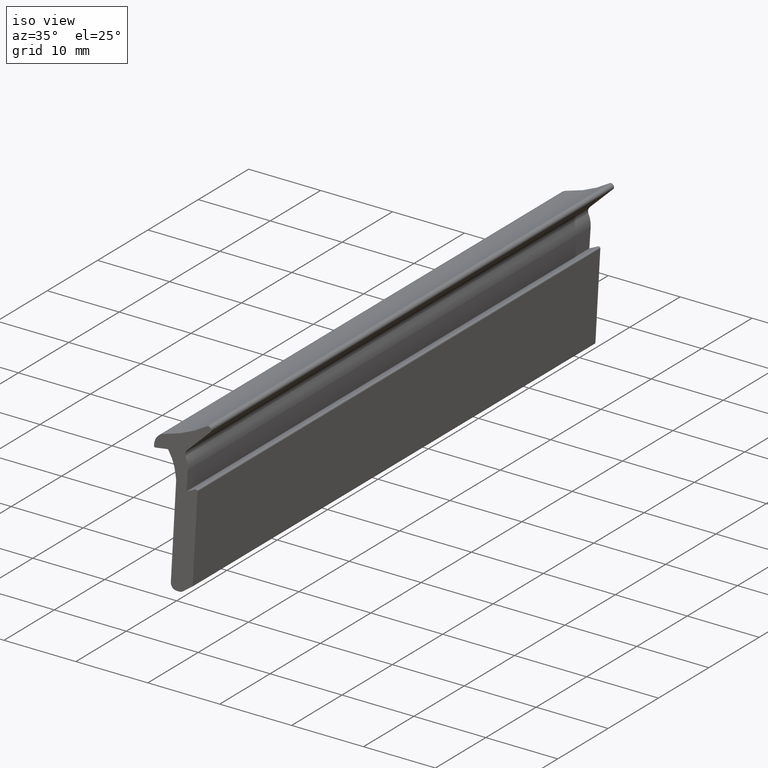
[diagram: clean part render]
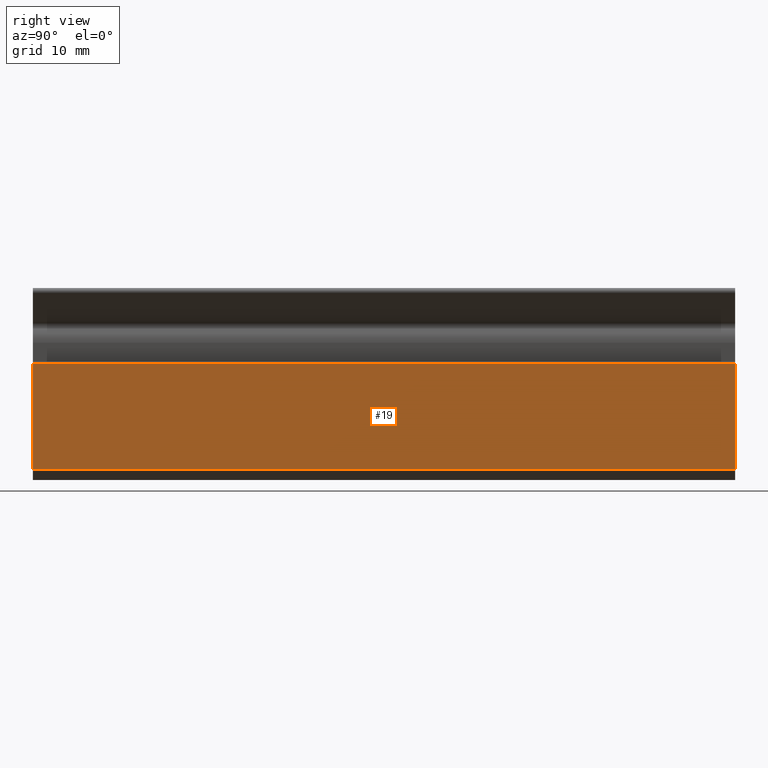
[diagram: tour spotlight — one face highlighted and labeled with its STEP entity id]
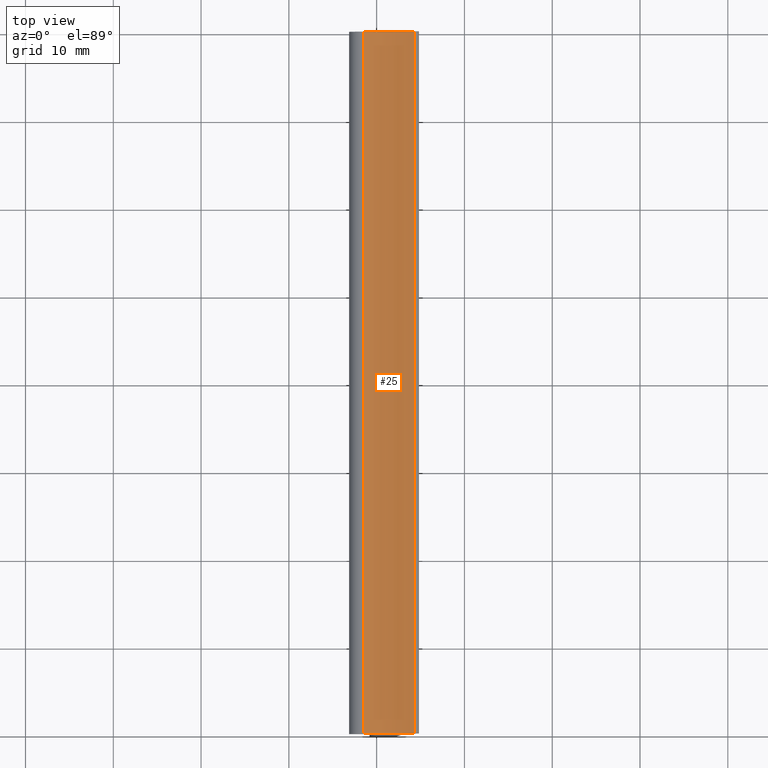
[diagram: tour spotlight — one face highlighted and labeled with its STEP entity id]
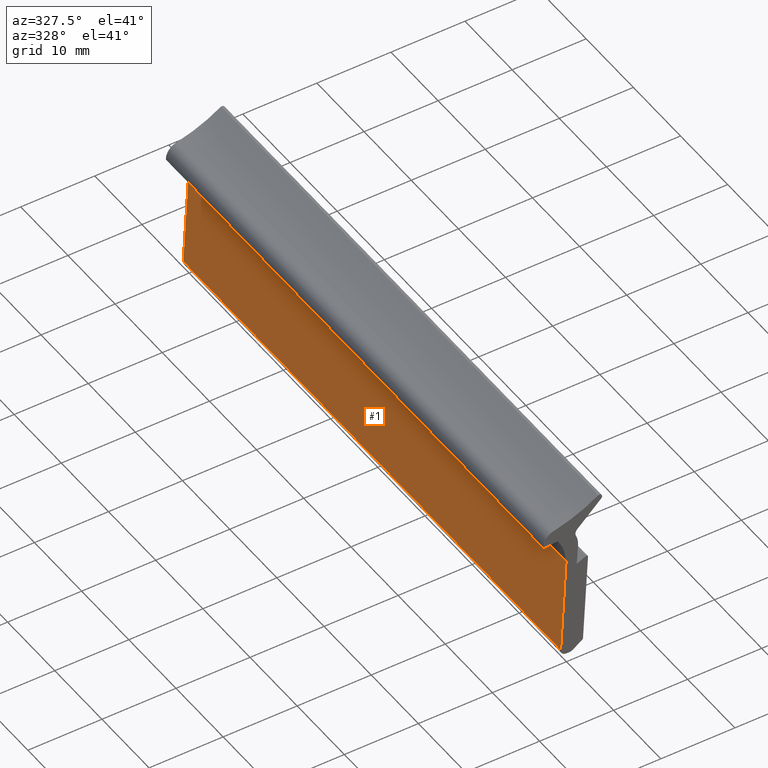
[diagram: tour spotlight — one face highlighted and labeled with its STEP entity id]
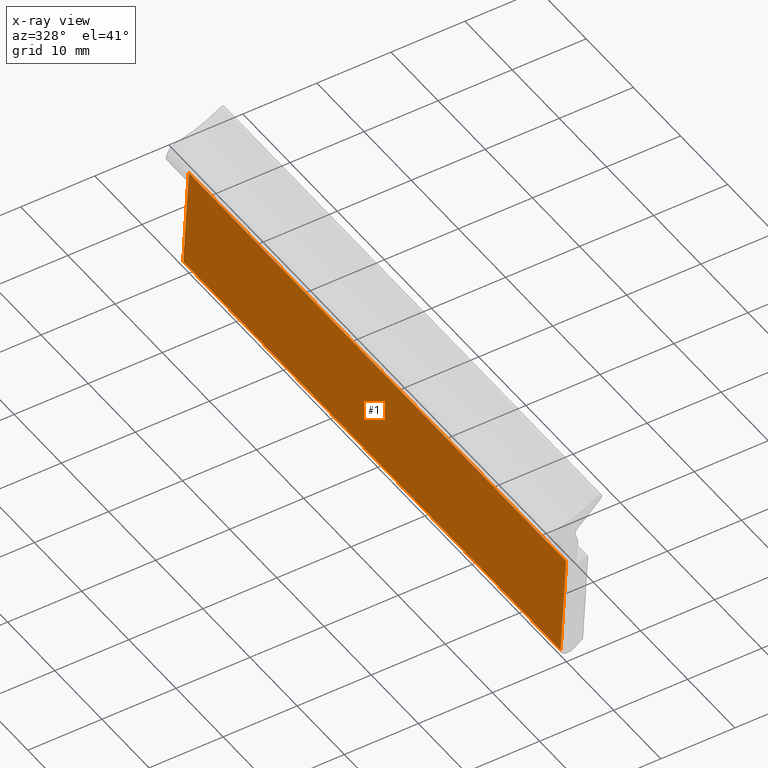
[diagram: x-ray of the same camera — body ghosted, this tour face saturated]
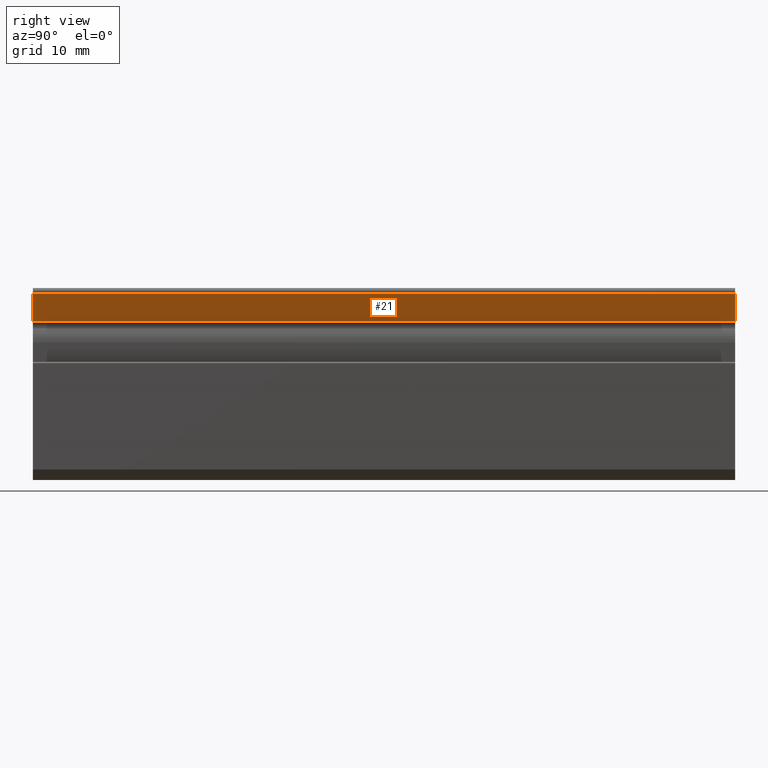
[diagram: tour spotlight — one face highlighted and labeled with its STEP entity id]
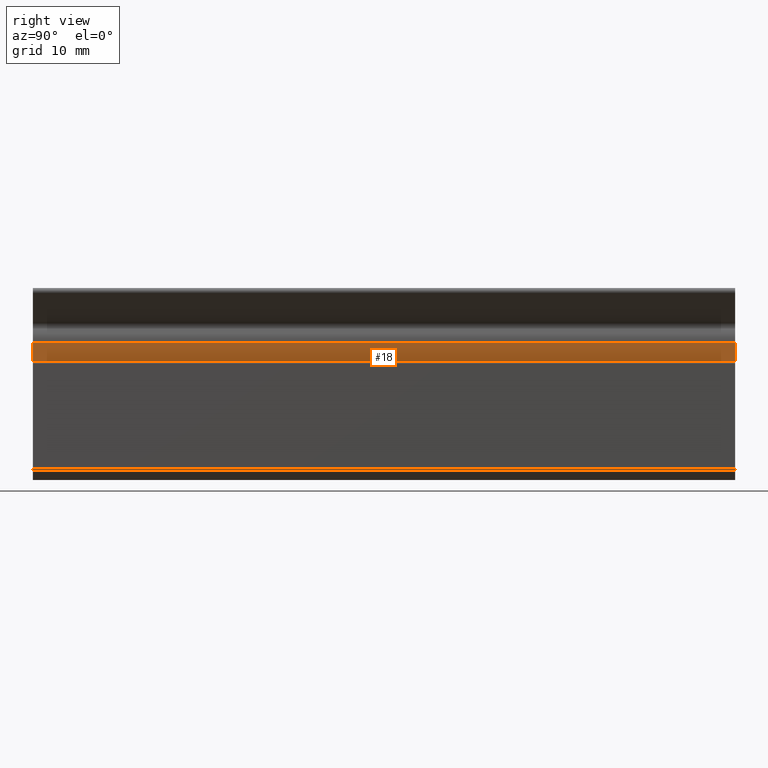
[diagram: tour spotlight — one face highlighted and labeled with its STEP entity id]
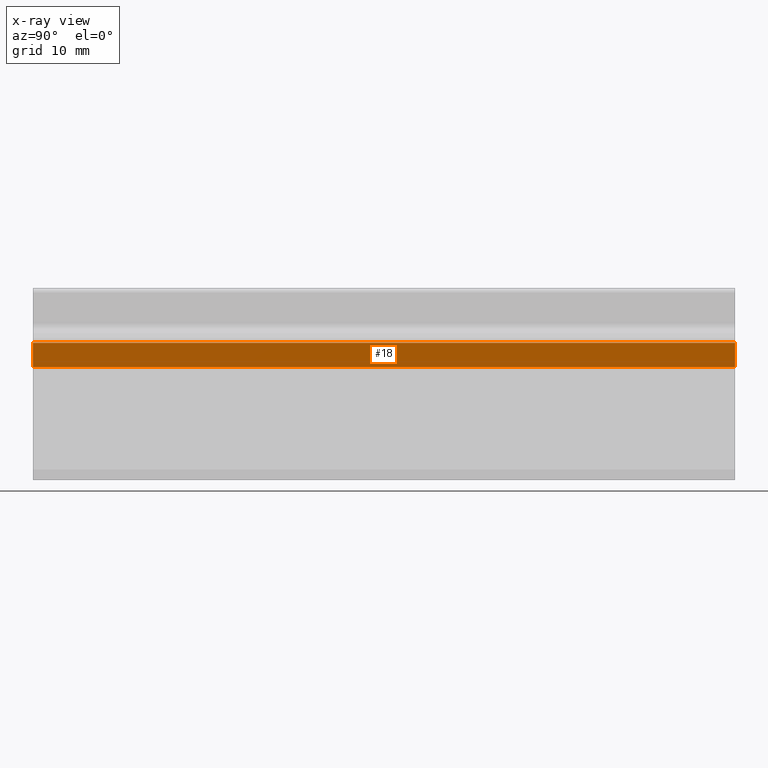
[diagram: x-ray of the same camera — body ghosted, this tour face saturated]
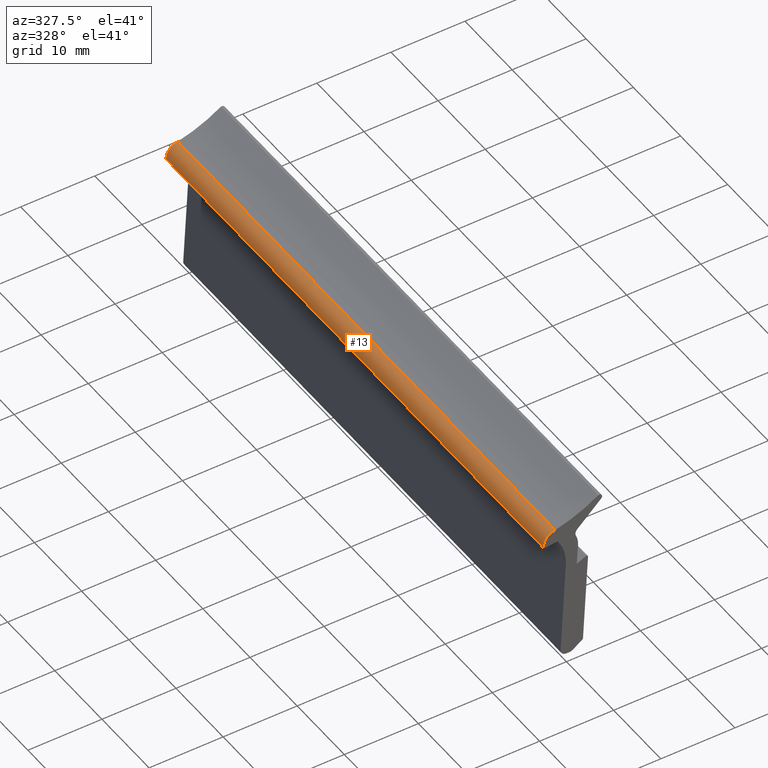
[diagram: tour spotlight — one face highlighted and labeled with its STEP entity id]
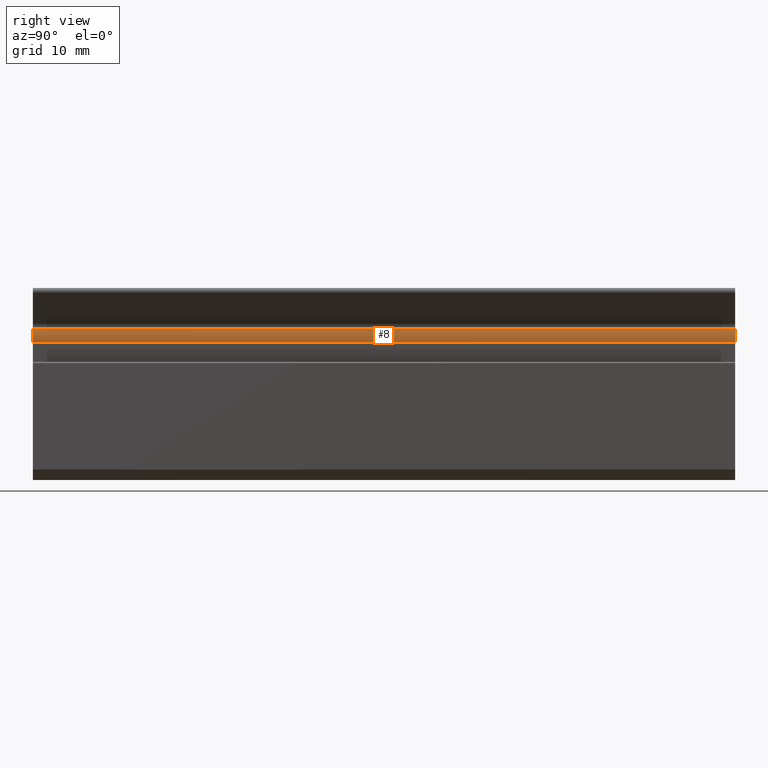
[diagram: tour spotlight — one face highlighted and labeled with its STEP entity id]
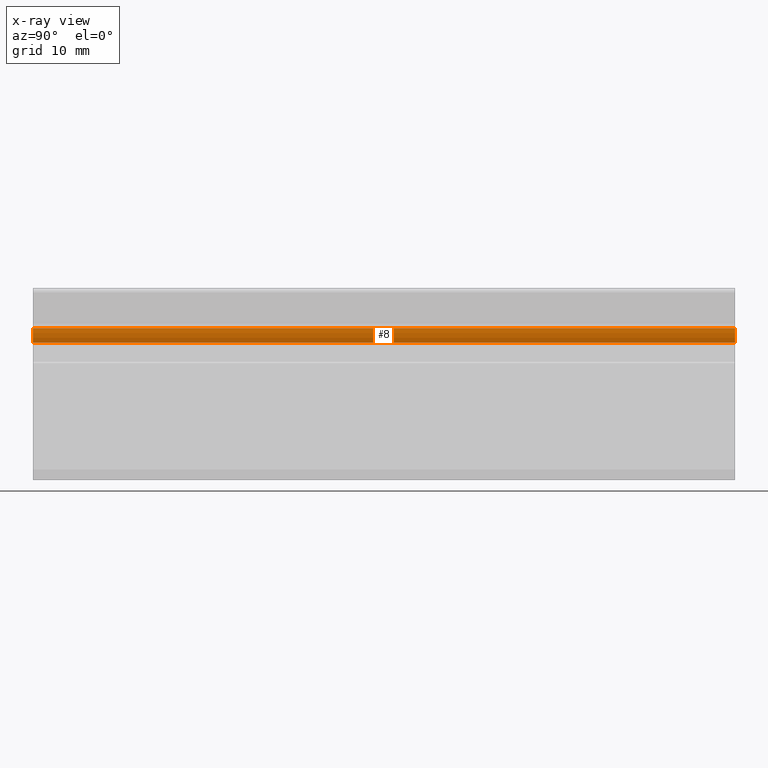
[diagram: x-ray of the same camera — body ghosted, this tour face saturated]
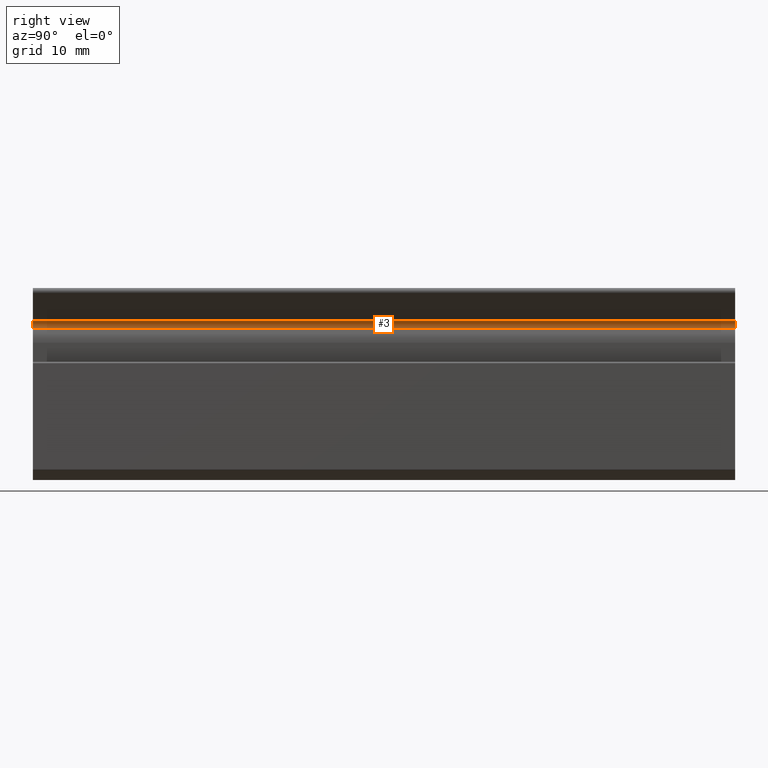
[diagram: tour spotlight — one face highlighted and labeled with its STEP entity id]
A machine part: a face-by-face anatomy tour. The part has 25 B-rep faces; the first image is the clean iso view, then the 8 largest visible faces are spotlighted one at a time (largest first), each with its STEP entity span.

Face 1 — right view, entity #19. In plain terms, the highlighted planar face has unit normal (0.9984, 0, -0.0568).
Definition (entity closure, byte-faithful):
#19 = ADVANCED_FACE ( 'NONE', ( #1017 ), #532, .T. ) ;
#29 = VECTOR ( 'NONE', #589, 1000.000000000000000 ) ;
#35 = LINE ( 'NONE', #638, #87 ) ;
#87 = VECTOR ( 'NONE', #618, 1000.000000000000100 ) ;
#91 = LINE ( 'NONE', #594, #92 ) ;
#92 = VECTOR ( 'NONE', #593, 1000.000000000000000 ) ;
#106 = LINE ( 'NONE', #445, #29 ) ;
#175 = DIRECTION ( 'NONE',  ( 0.05676368567396007000, 0.0000000000000000000, 0.9983876421454283000 ) ) ;
#183 = CARTESIAN_POINT ( 'NONE',  ( 2.228355824800579900, 0.0000000000000000000, 1.235416238565559200 ) ) ;
#238 = CARTESIAN_POINT ( 'NONE',  ( 2.228355824800579000, 80.00000000000000000, 1.235416238565558500 ) ) ;
#239 = CARTESIAN_POINT ( 'NONE',  ( 2.911613635079500600, 3.469446951953614200E-015, 13.25289089833300500 ) ) ;
#241 = CARTESIAN_POINT ( 'NONE',  ( 2.228355824800579500, 3.469446951953614200E-015, 1.235416238565558500 ) ) ;
#245 = CARTESIAN_POINT ( 'NONE',  ( 2.911613635079501000, 80.00000000000000000, 13.25289089833300500 ) ) ;
#345 = DIRECTION ( 'NONE',  ( -0.05676368567396041600, 0.0000000000000000000, -0.9983876421454281900 ) ) ;
#346 = DIRECTION ( 'NONE',  ( 0.9983876421454283000, 0.0000000000000000000, -0.05676368567396042300 ) ) ;
#409 = VERTEX_POINT ( 'NONE', #245 ) ;
#421 = CARTESIAN_POINT ( 'NONE',  ( 2.569984729940039800, 80.00200000000001000, 7.244153568449280400 ) ) ;
#424 = VERTEX_POINT ( 'NONE', #241 ) ;
#431 = VERTEX_POINT ( 'NONE', #239 ) ;
#434 = VERTEX_POINT ( 'NONE', #238 ) ;
#445 = CARTESIAN_POINT ( 'NONE',  ( 2.228355824800577700, 80.00200000000001000, 1.235416238565559200 ) ) ;
#532 = PLANE ( 'NONE',  #1026 ) ;
#589 = DIRECTION ( 'NONE',  ( 0.0000000000000000000, 1.000000000000000000, 0.0000000000000000000 ) ) ;
#593 = DIRECTION ( 'NONE',  ( -0.0000000000000000000, -1.000000000000000000, -0.0000000000000000000 ) ) ;
#594 = CARTESIAN_POINT ( 'NONE',  ( 2.911613635079501900, 80.00200000000001000, 13.25289089833300200 ) ) ;
#618 = DIRECTION ( 'NONE',  ( 0.05676368567396007000, 0.0000000000000000000, 0.9983876421454283000 ) ) ;
#638 = CARTESIAN_POINT ( 'NONE',  ( 2.228355824800579900, 80.00000000000000000, 1.235416238565559200 ) ) ;
#691 = EDGE_CURVE ( 'NONE', #424, #431, #1089, .T. ) ;
#713 = EDGE_CURVE ( 'NONE', #424, #434, #106, .T. ) ;
#738 = EDGE_LOOP ( 'NONE', ( #771, #870, #819, #813 ) ) ;
#771 = ORIENTED_EDGE ( 'NONE', *, *, #713, .T. ) ;
#813 = ORIENTED_EDGE ( 'NONE', *, *, #691, .F. ) ;
#819 = ORIENTED_EDGE ( 'NONE', *, *, #1200, .T. ) ;
#870 = ORIENTED_EDGE ( 'NONE', *, *, #1193, .T. ) ;
#978 = VECTOR ( 'NONE', #175, 1000.000000000000100 ) ;
#1017 = FACE_OUTER_BOUND ( 'NONE', #738, .T. ) ;
#1026 = AXIS2_PLACEMENT_3D ( 'NONE', #421, #346, #345 ) ;
#1089 = LINE ( 'NONE', #183, #978 ) ;
#1193 = EDGE_CURVE ( 'NONE', #434, #409, #35, .T. ) ;
#1200 = EDGE_CURVE ( 'NONE', #409, #431, #91, .T. ) ;

Face 2 — top view, entity #25. In plain terms, the highlighted cylindrical surface (partial cylindrical patch) has radius 18.0723 mm, axis along (0, 1, 0).
Definition (entity closure, byte-faithful):
#25 = ADVANCED_FACE ( 'NONE', ( #1175 ), #1174, .F. ) ;
#44 = LINE ( 'NONE', #467, #45 ) ;
#45 = VECTOR ( 'NONE', #465, 1000.000000000000000 ) ;
#53 = LINE ( 'NONE', #475, #54 ) ;
#54 = VECTOR ( 'NONE', #474, 1000.000000000000000 ) ;
#88 = CIRCLE ( 'NONE', #1138, 18.07227000000000300 ) ;
#96 = CIRCLE ( 'NONE', #1135, 18.07227000000000300 ) ;
#173 = VERTEX_POINT ( 'NONE', #274 ) ;
#227 = CARTESIAN_POINT ( 'NONE',  ( 4.274182064949770600, 80.00000000000000000, 21.84820240750396500 ) ) ;
#232 = VERTEX_POINT ( 'NONE', #271 ) ;
#236 = CARTESIAN_POINT ( 'NONE',  ( -1.512052473045930400, 80.00000000000000000, 19.32492363705894800 ) ) ;
#271 = CARTESIAN_POINT ( 'NONE',  ( 4.274182064949770600, 0.0000000000000000000, 21.84820240750396500 ) ) ;
#274 = CARTESIAN_POINT ( 'NONE',  ( -1.512052473046002300, 0.0000000000000000000, 19.32492363705893000 ) ) ;
#277 = CARTESIAN_POINT ( 'NONE',  ( -5.731911498888919700, 80.00000000000000000, 36.89762214863039700 ) ) ;
#289 = DIRECTION ( 'NONE',  ( 0.0000000000000000000, 1.000000000000000000, 0.0000000000000000000 ) ) ;
#290 = DIRECTION ( 'NONE',  ( 0.0000000000000000000, 0.0000000000000000000, 1.000000000000000000 ) ) ;
#439 = VERTEX_POINT ( 'NONE', #236 ) ;
#465 = DIRECTION ( 'NONE',  ( -0.0000000000000000000, -1.000000000000000000, -0.0000000000000000000 ) ) ;
#467 = CARTESIAN_POINT ( 'NONE',  ( 4.274182130928962500, 80.00000000000000000, 21.84820245137236600 ) ) ;
#474 = DIRECTION ( 'NONE',  ( 0.0000000000000000000, 1.000000000000000000, 0.0000000000000000000 ) ) ;
#475 = CARTESIAN_POINT ( 'NONE',  ( -1.512052407510166700, 80.00000000000000000, 19.32492364643227500 ) ) ;
#523 = VERTEX_POINT ( 'NONE', #227 ) ;
#586 = DIRECTION ( 'NONE',  ( 0.0000000000000000000, 0.0000000000000000000, 1.000000000000000000 ) ) ;
#587 = DIRECTION ( 'NONE',  ( 0.0000000000000000000, 1.000000000000000000, 0.0000000000000000000 ) ) ;
#590 = CARTESIAN_POINT ( 'NONE',  ( -5.731911498888919700, 80.00000000000000000, 36.89762214863039700 ) ) ;
#611 = DIRECTION ( 'NONE',  ( 0.0000000000000000000, 0.0000000000000000000, 1.000000000000000000 ) ) ;
#612 = DIRECTION ( 'NONE',  ( 0.0000000000000000000, 1.000000000000000000, 0.0000000000000000000 ) ) ;
#614 = CARTESIAN_POINT ( 'NONE',  ( -5.731911498888919700, 0.0000000000000000000, 36.89762214863039700 ) ) ;
#720 = EDGE_LOOP ( 'NONE', ( #820, #860, #825, #750 ) ) ;
#750 = ORIENTED_EDGE ( 'NONE', *, *, #1195, .F. ) ;
#820 = ORIENTED_EDGE ( 'NONE', *, *, #1231, .F. ) ;
#825 = ORIENTED_EDGE ( 'NONE', *, *, #1222, .F. ) ;
#860 = ORIENTED_EDGE ( 'NONE', *, *, #1202, .T. ) ;
#1135 = AXIS2_PLACEMENT_3D ( 'NONE', #614, #612, #611 ) ;
#1138 = AXIS2_PLACEMENT_3D ( 'NONE', #590, #587, #586 ) ;
#1174 = CYLINDRICAL_SURFACE ( 'NONE', #1227, 18.07227000000000300 ) ;
#1175 = FACE_OUTER_BOUND ( 'NONE', #720, .T. ) ;
#1195 = EDGE_CURVE ( 'NONE', #232, #173, #96, .T. ) ;
#1202 = EDGE_CURVE ( 'NONE', #523, #439, #88, .T. ) ;
#1222 = EDGE_CURVE ( 'NONE', #173, #439, #53, .T. ) ;
#1227 = AXIS2_PLACEMENT_3D ( 'NONE', #277, #289, #290 ) ;
#1231 = EDGE_CURVE ( 'NONE', #523, #232, #44, .T. ) ;

Face 3 — auxiliary view, entity #1. An x-ray twin of the same camera follows (body ghosted, this face saturated) — the face is partly hidden behind the body. In plain terms, the highlighted planar face has unit normal (-0.9984, 0, 0.0568).
Definition (entity closure, byte-faithful):
#1 = ADVANCED_FACE ( 'NONE', ( #757 ), #626, .T. ) ;
#56 = VECTOR ( 'NONE', #470, 1000.000000000000000 ) ;
#59 = LINE ( 'NONE', #471, #56 ) ;
#65 = LINE ( 'NONE', #494, #66 ) ;
#66 = VECTOR ( 'NONE', #493, 1000.000000000000000 ) ;
#93 = VECTOR ( 'NONE', #597, 999.9999999999998900 ) ;
#97 = LINE ( 'NONE', #613, #93 ) ;
#192 = DIRECTION ( 'NONE',  ( 0.05676368567403072100, 0.0000000000000000000, 0.9983876421454244100 ) ) ;
#194 = DIRECTION ( 'NONE',  ( -0.9983876421454244100, 0.0000000000000000000, 0.05676368567403072100 ) ) ;
#200 = DIRECTION ( 'NONE',  ( 0.05676368567403072100, 0.0000000000000000000, 0.9983876421454244100 ) ) ;
#202 = CARTESIAN_POINT ( 'NONE',  ( -0.1404533344389890000, 0.0000000000000000000, 12.42232563803260000 ) ) ;
#222 = CARTESIAN_POINT ( 'NONE',  ( -0.7981704098079343000, 0.0000000000000000000, 0.8540739947675680700 ) ) ;
#234 = VERTEX_POINT ( 'NONE', #269 ) ;
#249 = VERTEX_POINT ( 'NONE', #264 ) ;
#257 = CARTESIAN_POINT ( 'NONE',  ( -0.05553966489899717800, 80.00000000000000000, 13.91582905154919900 ) ) ;
#264 = CARTESIAN_POINT ( 'NONE',  ( -0.7981704098079343000, 80.00000000000000000, 0.8540739947675680700 ) ) ;
#269 = CARTESIAN_POINT ( 'NONE',  ( -0.05553966489899920400, 0.0000000000000000000, 13.91582905154919900 ) ) ;
#282 = VERTEX_POINT ( 'NONE', #257 ) ;
#470 = DIRECTION ( 'NONE',  ( 0.0000000000000000000, 1.000000000000000000, -0.0000000000000000000 ) ) ;
#471 = CARTESIAN_POINT ( 'NONE',  ( -0.05553966489899715700, 80.00000000000000000, 13.91582905154919900 ) ) ;
#493 = DIRECTION ( 'NONE',  ( -0.0000000000000000000, -1.000000000000000000, 0.0000000000000000000 ) ) ;
#494 = CARTESIAN_POINT ( 'NONE',  ( -0.7981704098056254800, 80.00000000000000000, 0.8540739948081771400 ) ) ;
#528 = CARTESIAN_POINT ( 'NONE',  ( -0.1404533344389890000, 80.00000000000000000, 12.42232563803260000 ) ) ;
#557 = VERTEX_POINT ( 'NONE', #222 ) ;
#597 = DIRECTION ( 'NONE',  ( -0.05676368567403072100, -0.0000000000000000000, -0.9983876421454244100 ) ) ;
#613 = CARTESIAN_POINT ( 'NONE',  ( -0.1404533344389890000, 80.00000000000000000, 12.42232563803260000 ) ) ;
#626 = PLANE ( 'NONE',  #1095 ) ;
#684 = EDGE_CURVE ( 'NONE', #557, #234, #1113, .T. ) ;
#721 = EDGE_LOOP ( 'NONE', ( #830, #821, #833, #837 ) ) ;
#757 = FACE_OUTER_BOUND ( 'NONE', #721, .T. ) ;
#821 = ORIENTED_EDGE ( 'NONE', *, *, #1213, .T. ) ;
#830 = ORIENTED_EDGE ( 'NONE', *, *, #1199, .T. ) ;
#833 = ORIENTED_EDGE ( 'NONE', *, *, #684, .T. ) ;
#837 = ORIENTED_EDGE ( 'NONE', *, *, #1224, .T. ) ;
#914 = VECTOR ( 'NONE', #200, 999.9999999999998900 ) ;
#1095 = AXIS2_PLACEMENT_3D ( 'NONE', #528, #194, #192 ) ;
#1113 = LINE ( 'NONE', #202, #914 ) ;
#1199 = EDGE_CURVE ( 'NONE', #282, #249, #97, .T. ) ;
#1213 = EDGE_CURVE ( 'NONE', #249, #557, #65, .T. ) ;
#1224 = EDGE_CURVE ( 'NONE', #234, #282, #59, .T. ) ;

Face 4 — right view, entity #21. In plain terms, the highlighted planar face has unit normal (0.6944, 0, -0.7196).
Definition (entity closure, byte-faithful):
#21 = ADVANCED_FACE ( 'NONE', ( #965 ), #334, .T. ) ;
#46 = VECTOR ( 'NONE', #468, 1000.000000000000000 ) ;
#50 = LINE ( 'NONE', #469, #46 ) ;
#119 = DIRECTION ( 'NONE',  ( 0.0000000000000000000, 1.000000000000000000, 0.0000000000000000000 ) ) ;
#120 = CARTESIAN_POINT ( 'NONE',  ( 1.496619778700762500, 80.00000000000000000, 18.10250496876746200 ) ) ;
#121 = DIRECTION ( 'NONE',  ( -0.0000000000000000000, -1.000000000000000000, -0.0000000000000000000 ) ) ;
#129 = DIRECTION ( 'NONE',  ( 0.7195697205638583700, 0.0000000000000000000, 0.6944202022173972000 ) ) ;
#131 = CARTESIAN_POINT ( 'NONE',  ( 4.729710673244870400, 80.00000000000000000, 21.22259683563660100 ) ) ;
#152 = CARTESIAN_POINT ( 'NONE',  ( 1.496619778700730000, 80.00000000000000000, 18.10250496876749800 ) ) ;
#229 = VERTEX_POINT ( 'NONE', #272 ) ;
#231 = CARTESIAN_POINT ( 'NONE',  ( 4.729710608340329100, 80.00000000000000000, 21.22259677300052200 ) ) ;
#247 = CARTESIAN_POINT ( 'NONE',  ( 4.729710608340329100, 3.469446951953614200E-015, 21.22259677300052200 ) ) ;
#252 = CARTESIAN_POINT ( 'NONE',  ( 1.496619778700798200, 0.0000000000000000000, 18.10250496876753000 ) ) ;
#272 = CARTESIAN_POINT ( 'NONE',  ( 1.496619778700798200, 80.00000000000000000, 18.10250496876753000 ) ) ;
#324 = DIRECTION ( 'NONE',  ( -0.7195697205638510500, 0.0000000000000000000, -0.6944202022174048600 ) ) ;
#325 = DIRECTION ( 'NONE',  ( 0.6944202022174048600, 0.0000000000000000000, -0.7195697205638510500 ) ) ;
#334 = PLANE ( 'NONE',  #1226 ) ;
#335 = CARTESIAN_POINT ( 'NONE',  ( 4.729710673244870400, 80.00000000000000000, 21.22259683563660100 ) ) ;
#392 = VERTEX_POINT ( 'NONE', #252 ) ;
#405 = VERTEX_POINT ( 'NONE', #247 ) ;
#468 = DIRECTION ( 'NONE',  ( 0.7195697205638583700, 0.0000000000000000000, 0.6944202022173972000 ) ) ;
#469 = CARTESIAN_POINT ( 'NONE',  ( 1.496619778700730000, 0.0000000000000000000, 18.10250496876749800 ) ) ;
#501 = VERTEX_POINT ( 'NONE', #231 ) ;
#702 = EDGE_CURVE ( 'NONE', #229, #501, #1021, .T. ) ;
#705 = EDGE_CURVE ( 'NONE', #501, #405, #1015, .T. ) ;
#706 = EDGE_CURVE ( 'NONE', #392, #229, #1033, .T. ) ;
#753 = EDGE_LOOP ( 'NONE', ( #884, #883, #859, #770 ) ) ;
#770 = ORIENTED_EDGE ( 'NONE', *, *, #706, .T. ) ;
#859 = ORIENTED_EDGE ( 'NONE', *, *, #1225, .F. ) ;
#883 = ORIENTED_EDGE ( 'NONE', *, *, #705, .T. ) ;
#884 = ORIENTED_EDGE ( 'NONE', *, *, #702, .T. ) ;
#895 = VECTOR ( 'NONE', #121, 1000.000000000000000 ) ;
#950 = VECTOR ( 'NONE', #119, 1000.000000000000000 ) ;
#965 = FACE_OUTER_BOUND ( 'NONE', #753, .T. ) ;
#967 = VECTOR ( 'NONE', #129, 1000.000000000000000 ) ;
#1015 = LINE ( 'NONE', #131, #895 ) ;
#1021 = LINE ( 'NONE', #152, #967 ) ;
#1033 = LINE ( 'NONE', #120, #950 ) ;
#1225 = EDGE_CURVE ( 'NONE', #392, #405, #50, .T. ) ;
#1226 = AXIS2_PLACEMENT_3D ( 'NONE', #335, #325, #324 ) ;

Face 5 — right view, entity #18. An x-ray twin of the same camera follows (body ghosted, this face saturated) — the face is partly hidden behind the body. In plain terms, the highlighted planar face has unit normal (0.9977, 0, -0.0676).
Definition (entity closure, byte-faithful):
#18 = ADVANCED_FACE ( 'NONE', ( #1041 ), #357, .T. ) ;
#70 = VECTOR ( 'NONE', #497, 1000.000000000000000 ) ;
#71 = LINE ( 'NONE', #577, #70 ) ;
#82 = VECTOR ( 'NONE', #572, 1000.000000000000100 ) ;
#90 = LINE ( 'NONE', #574, #82 ) ;
#105 = VECTOR ( 'NONE', #113, 1000.000000000000000 ) ;
#113 = DIRECTION ( 'NONE',  ( 0.0000000000000000000, 1.000000000000000000, 0.0000000000000000000 ) ) ;
#122 = CARTESIAN_POINT ( 'NONE',  ( 1.382881126428402900, 80.00000000000000000, 12.85612397143880000 ) ) ;
#186 = DIRECTION ( 'NONE',  ( 0.06759249350663143500, 0.0000000000000000000, 0.9977130122543035300 ) ) ;
#187 = CARTESIAN_POINT ( 'NONE',  ( 1.382881126428400000, 80.00000000000000000, 12.85612397143880000 ) ) ;
#219 = CARTESIAN_POINT ( 'NONE',  ( 1.382881126428400900, 80.00000000000000000, 12.85612397143880000 ) ) ;
#246 = CARTESIAN_POINT ( 'NONE',  ( 1.570360135919193900, 80.00000000000000000, 15.62344675522043300 ) ) ;
#255 = CARTESIAN_POINT ( 'NONE',  ( 1.570360135919193900, 0.0000000000000000000, 15.62344675522043300 ) ) ;
#267 = VERTEX_POINT ( 'NONE', #312 ) ;
#312 = CARTESIAN_POINT ( 'NONE',  ( 1.382881126428400900, -2.312964634635742900E-014, 12.85612397143880000 ) ) ;
#357 = PLANE ( 'NONE',  #1048 ) ;
#365 = CARTESIAN_POINT ( 'NONE',  ( 1.570360156810229900, 80.00000000000000000, 15.62344706358690000 ) ) ;
#380 = VERTEX_POINT ( 'NONE', #255 ) ;
#398 = DIRECTION ( 'NONE',  ( -0.06759249350663036600, 0.0000000000000000000, -0.9977130122543035300 ) ) ;
#407 = VERTEX_POINT ( 'NONE', #246 ) ;
#497 = DIRECTION ( 'NONE',  ( -0.0000000000000000000, -1.000000000000000000, -0.0000000000000000000 ) ) ;
#535 = DIRECTION ( 'NONE',  ( 0.9977130122543036400, 0.0000000000000000000, -0.06759249350663038000 ) ) ;
#567 = VERTEX_POINT ( 'NONE', #219 ) ;
#572 = DIRECTION ( 'NONE',  ( 0.06759249350663143500, 0.0000000000000000000, 0.9977130122543035300 ) ) ;
#574 = CARTESIAN_POINT ( 'NONE',  ( 1.382881126428400000, 0.0000000000000000000, 12.85612397143880000 ) ) ;
#577 = CARTESIAN_POINT ( 'NONE',  ( 1.570360156810229900, 80.00000000000000000, 15.62344706358690000 ) ) ;
#688 = EDGE_CURVE ( 'NONE', #567, #407, #997, .T. ) ;
#708 = EDGE_CURVE ( 'NONE', #267, #567, #903, .T. ) ;
#723 = EDGE_LOOP ( 'NONE', ( #795, #794, #890, #885 ) ) ;
#794 = ORIENTED_EDGE ( 'NONE', *, *, #1211, .T. ) ;
#795 = ORIENTED_EDGE ( 'NONE', *, *, #688, .T. ) ;
#885 = ORIENTED_EDGE ( 'NONE', *, *, #708, .T. ) ;
#890 = ORIENTED_EDGE ( 'NONE', *, *, #1206, .F. ) ;
#903 = LINE ( 'NONE', #122, #105 ) ;
#995 = VECTOR ( 'NONE', #186, 1000.000000000000100 ) ;
#997 = LINE ( 'NONE', #187, #995 ) ;
#1041 = FACE_OUTER_BOUND ( 'NONE', #723, .T. ) ;
#1048 = AXIS2_PLACEMENT_3D ( 'NONE', #365, #535, #398 ) ;
#1206 = EDGE_CURVE ( 'NONE', #267, #380, #90, .T. ) ;
#1211 = EDGE_CURVE ( 'NONE', #407, #380, #71, .T. ) ;

Face 6 — auxiliary view, entity #13. In plain terms, the highlighted cylindrical surface (edge-blend (fillet) strip) has radius 1.9 mm, axis along (0, 1, 0).
Definition (entity closure, byte-faithful):
#13 = ADVANCED_FACE ( 'NONE', ( #930 ), #929, .T. ) ;
#32 = CIRCLE ( 'NONE', #1162, 1.899999999999999000 ) ;
#53 = LINE ( 'NONE', #475, #54 ) ;
#54 = VECTOR ( 'NONE', #474, 1000.000000000000000 ) ;
#74 = LINE ( 'NONE', #508, #75 ) ;
#75 = VECTOR ( 'NONE', #507, 1000.000000000000000 ) ;
#171 = DIRECTION ( 'NONE',  ( 0.0000000000000000000, 0.0000000000000000000, 1.000000000000000000 ) ) ;
#172 = DIRECTION ( 'NONE',  ( -0.0000000000000000000, -1.000000000000000000, -0.0000000000000000000 ) ) ;
#173 = VERTEX_POINT ( 'NONE', #274 ) ;
#176 = CARTESIAN_POINT ( 'NONE',  ( -1.243040143568640000, 0.0000000000000000000, 17.44406416155600000 ) ) ;
#236 = CARTESIAN_POINT ( 'NONE',  ( -1.512052473045930400, 80.00000000000000000, 19.32492363705894800 ) ) ;
#248 = CARTESIAN_POINT ( 'NONE',  ( -3.142693847820040800, 80.00000000000000000, 17.40779014985669400 ) ) ;
#251 = CARTESIAN_POINT ( 'NONE',  ( -3.142693847820040800, 0.0000000000000000000, 17.40779014985669400 ) ) ;
#274 = CARTESIAN_POINT ( 'NONE',  ( -1.512052473046002300, 0.0000000000000000000, 19.32492363705893000 ) ) ;
#394 = VERTEX_POINT ( 'NONE', #251 ) ;
#399 = VERTEX_POINT ( 'NONE', #248 ) ;
#420 = CARTESIAN_POINT ( 'NONE',  ( -1.243040143568640000, 80.00000000000000000, 17.44406416155600000 ) ) ;
#432 = DIRECTION ( 'NONE',  ( 0.0000000000000000000, 1.000000000000000000, 0.0000000000000000000 ) ) ;
#433 = DIRECTION ( 'NONE',  ( 0.0000000000000000000, 0.0000000000000000000, 1.000000000000000000 ) ) ;
#439 = VERTEX_POINT ( 'NONE', #236 ) ;
#474 = DIRECTION ( 'NONE',  ( 0.0000000000000000000, 1.000000000000000000, 0.0000000000000000000 ) ) ;
#475 = CARTESIAN_POINT ( 'NONE',  ( -1.512052407510166700, 80.00000000000000000, 19.32492364643227500 ) ) ;
#507 = DIRECTION ( 'NONE',  ( -0.0000000000000000000, -1.000000000000000000, -0.0000000000000000000 ) ) ;
#508 = CARTESIAN_POINT ( 'NONE',  ( -3.142693847819828500, 80.00000000000000000, 17.40779014985700000 ) ) ;
#588 = CARTESIAN_POINT ( 'NONE',  ( -1.243040143568640000, 80.00000000000000000, 17.44406416155600000 ) ) ;
#596 = DIRECTION ( 'NONE',  ( -0.0000000000000000000, -1.000000000000000000, -0.0000000000000000000 ) ) ;
#598 = DIRECTION ( 'NONE',  ( 0.0000000000000000000, 0.0000000000000000000, 1.000000000000000000 ) ) ;
#692 = EDGE_CURVE ( 'NONE', #173, #394, #1179, .T. ) ;
#714 = EDGE_CURVE ( 'NONE', #439, #399, #32, .T. ) ;
#727 = ORIENTED_EDGE ( 'NONE', *, *, #714, .T. ) ;
#730 = ORIENTED_EDGE ( 'NONE', *, *, #1222, .T. ) ;
#731 = ORIENTED_EDGE ( 'NONE', *, *, #692, .F. ) ;
#752 = EDGE_LOOP ( 'NONE', ( #727, #853, #731, #730 ) ) ;
#853 = ORIENTED_EDGE ( 'NONE', *, *, #1207, .T. ) ;
#929 = CYLINDRICAL_SURFACE ( 'NONE', #1085, 1.899999999999999000 ) ;
#930 = FACE_OUTER_BOUND ( 'NONE', #752, .T. ) ;
#1077 = AXIS2_PLACEMENT_3D ( 'NONE', #176, #172, #171 ) ;
#1085 = AXIS2_PLACEMENT_3D ( 'NONE', #420, #432, #433 ) ;
#1162 = AXIS2_PLACEMENT_3D ( 'NONE', #588, #596, #598 ) ;
#1179 = CIRCLE ( 'NONE', #1077, 1.899999999999999000 ) ;
#1207 = EDGE_CURVE ( 'NONE', #399, #394, #74, .T. ) ;
#1222 = EDGE_CURVE ( 'NONE', #173, #439, #53, .T. ) ;

Face 7 — right view, entity #8. An x-ray twin of the same camera follows (body ghosted, this face saturated) — the face is partly hidden behind the body. In plain terms, the highlighted cylindrical surface (edge-blend (fillet) strip) has radius 3.3659 mm, axis along (0, 1, 0).
Definition (entity closure, byte-faithful):
#8 = ADVANCED_FACE ( 'NONE', ( #901 ), #845, .T. ) ;
#33 = CIRCLE ( 'NONE', #1034, 3.365876399999998500 ) ;
#70 = VECTOR ( 'NONE', #497, 1000.000000000000000 ) ;
#71 = LINE ( 'NONE', #577, #70 ) ;
#72 = CIRCLE ( 'NONE', #1109, 3.365876399999998500 ) ;
#203 = DIRECTION ( 'NONE',  ( -0.0000000000000000000, -1.000000000000000000, -0.0000000000000000000 ) ) ;
#204 = CARTESIAN_POINT ( 'NONE',  ( 1.235320128681722600, 80.00000000000000000, 17.26473320966469400 ) ) ;
#228 = CARTESIAN_POINT ( 'NONE',  ( 1.235320137243974200, 0.0000000000000000000, 17.26473317968714100 ) ) ;
#246 = CARTESIAN_POINT ( 'NONE',  ( 1.570360135919193900, 80.00000000000000000, 15.62344675522043300 ) ) ;
#255 = CARTESIAN_POINT ( 'NONE',  ( 1.570360135919193900, 0.0000000000000000000, 15.62344675522043300 ) ) ;
#262 = CARTESIAN_POINT ( 'NONE',  ( 1.235320137243971700, 80.00000000000000000, 17.26473317968714500 ) ) ;
#268 = VERTEX_POINT ( 'NONE', #262 ) ;
#380 = VERTEX_POINT ( 'NONE', #255 ) ;
#407 = VERTEX_POINT ( 'NONE', #246 ) ;
#497 = DIRECTION ( 'NONE',  ( -0.0000000000000000000, -1.000000000000000000, -0.0000000000000000000 ) ) ;
#503 = DIRECTION ( 'NONE',  ( 0.0000000000000000000, 0.0000000000000000000, 1.000000000000000000 ) ) ;
#504 = DIRECTION ( 'NONE',  ( 0.0000000000000000000, 1.000000000000000000, 0.0000000000000000000 ) ) ;
#517 = VERTEX_POINT ( 'NONE', #228 ) ;
#549 = CARTESIAN_POINT ( 'NONE',  ( -1.791290084530180000, 80.00000000000000000, 15.79206399008820000 ) ) ;
#558 = DIRECTION ( 'NONE',  ( 0.0000000000000000000, 1.000000000000000000, 0.0000000000000000000 ) ) ;
#559 = DIRECTION ( 'NONE',  ( 0.0000000000000000000, 0.0000000000000000000, 1.000000000000000000 ) ) ;
#577 = CARTESIAN_POINT ( 'NONE',  ( 1.570360156810229900, 80.00000000000000000, 15.62344706358690000 ) ) ;
#580 = CARTESIAN_POINT ( 'NONE',  ( -1.791290084530180000, 0.0000000000000000000, 15.79206399008820000 ) ) ;
#642 = DIRECTION ( 'NONE',  ( 4.445198873107749000E-015, 0.0000000000000000000, 1.000000000000000000 ) ) ;
#643 = DIRECTION ( 'NONE',  ( -0.0000000000000000000, -1.000000000000000000, -0.0000000000000000000 ) ) ;
#647 = CARTESIAN_POINT ( 'NONE',  ( -1.791290084530180000, 80.00000000000000000, 15.79206399008820000 ) ) ;
#683 = EDGE_CURVE ( 'NONE', #268, #517, #915, .T. ) ;
#775 = ORIENTED_EDGE ( 'NONE', *, *, #1211, .F. ) ;
#781 = ORIENTED_EDGE ( 'NONE', *, *, #683, .T. ) ;
#782 = ORIENTED_EDGE ( 'NONE', *, *, #1209, .T. ) ;
#790 = ORIENTED_EDGE ( 'NONE', *, *, #1186, .T. ) ;
#804 = EDGE_LOOP ( 'NONE', ( #790, #781, #782, #775 ) ) ;
#845 = CYLINDRICAL_SURFACE ( 'NONE', #1032, 3.365876399999998500 ) ;
#901 = FACE_OUTER_BOUND ( 'NONE', #804, .T. ) ;
#915 = LINE ( 'NONE', #204, #916 ) ;
#916 = VECTOR ( 'NONE', #203, 1000.000000000000000 ) ;
#1032 = AXIS2_PLACEMENT_3D ( 'NONE', #549, #558, #559 ) ;
#1034 = AXIS2_PLACEMENT_3D ( 'NONE', #647, #643, #642 ) ;
#1109 = AXIS2_PLACEMENT_3D ( 'NONE', #580, #504, #503 ) ;
#1186 = EDGE_CURVE ( 'NONE', #407, #268, #33, .T. ) ;
#1209 = EDGE_CURVE ( 'NONE', #517, #380, #72, .T. ) ;
#1211 = EDGE_CURVE ( 'NONE', #407, #380, #71, .T. ) ;

Face 8 — right view, entity #3. In plain terms, the highlighted cylindrical surface (edge-blend (fillet) strip) has radius 0.8 mm, axis along (0, 1, 0).
Definition (entity closure, byte-faithful):
#3 = ADVANCED_FACE ( 'NONE', ( #736 ), #734, .F. ) ;
#81 = CIRCLE ( 'NONE', #1127, 0.7999999999999986000 ) ;
#119 = DIRECTION ( 'NONE',  ( 0.0000000000000000000, 1.000000000000000000, 0.0000000000000000000 ) ) ;
#120 = CARTESIAN_POINT ( 'NONE',  ( 1.496619778700762500, 80.00000000000000000, 18.10250496876746200 ) ) ;
#123 = DIRECTION ( 'NONE',  ( -1.626303258728259400E-015, 0.0000000000000000000, 1.000000000000000000 ) ) ;
#125 = DIRECTION ( 'NONE',  ( -0.0000000000000000000, -1.000000000000000000, -0.0000000000000000000 ) ) ;
#128 = CARTESIAN_POINT ( 'NONE',  ( 2.004558028133109900, 80.00000000000000000, 17.48444450670609700 ) ) ;
#141 = CARTESIAN_POINT ( 'NONE',  ( 2.004558028133109900, 80.00000000000000000, 17.48444450670609700 ) ) ;
#159 = DIRECTION ( 'NONE',  ( 0.0000000000000000000, 1.000000000000000000, 0.0000000000000000000 ) ) ;
#161 = DIRECTION ( 'NONE',  ( 0.0000000000000000000, 0.0000000000000000000, 1.000000000000000000 ) ) ;
#203 = DIRECTION ( 'NONE',  ( -0.0000000000000000000, -1.000000000000000000, -0.0000000000000000000 ) ) ;
#204 = CARTESIAN_POINT ( 'NONE',  ( 1.235320128681722600, 80.00000000000000000, 17.26473320966469400 ) ) ;
#228 = CARTESIAN_POINT ( 'NONE',  ( 1.235320137243974200, 0.0000000000000000000, 17.26473317968714100 ) ) ;
#229 = VERTEX_POINT ( 'NONE', #272 ) ;
#252 = CARTESIAN_POINT ( 'NONE',  ( 1.496619778700798200, 0.0000000000000000000, 18.10250496876753000 ) ) ;
#262 = CARTESIAN_POINT ( 'NONE',  ( 1.235320137243971700, 80.00000000000000000, 17.26473317968714500 ) ) ;
#268 = VERTEX_POINT ( 'NONE', #262 ) ;
#272 = CARTESIAN_POINT ( 'NONE',  ( 1.496619778700798200, 80.00000000000000000, 18.10250496876753000 ) ) ;
#392 = VERTEX_POINT ( 'NONE', #252 ) ;
#517 = VERTEX_POINT ( 'NONE', #228 ) ;
#582 = DIRECTION ( 'NONE',  ( 0.0000000000000000000, 0.0000000000000000000, 1.000000000000000000 ) ) ;
#583 = DIRECTION ( 'NONE',  ( 0.0000000000000000000, 1.000000000000000000, 0.0000000000000000000 ) ) ;
#585 = CARTESIAN_POINT ( 'NONE',  ( 2.004558028133109900, 0.0000000000000000000, 17.48444450670609700 ) ) ;
#683 = EDGE_CURVE ( 'NONE', #268, #517, #915, .T. ) ;
#704 = EDGE_CURVE ( 'NONE', #229, #268, #1019, .T. ) ;
#706 = EDGE_CURVE ( 'NONE', #392, #229, #1033, .T. ) ;
#734 = CYLINDRICAL_SURFACE ( 'NONE', #1037, 0.7999999999999986000 ) ;
#736 = FACE_OUTER_BOUND ( 'NONE', #764, .T. ) ;
#759 = ORIENTED_EDGE ( 'NONE', *, *, #706, .F. ) ;
#764 = EDGE_LOOP ( 'NONE', ( #893, #792, #759, #797 ) ) ;
#792 = ORIENTED_EDGE ( 'NONE', *, *, #704, .F. ) ;
#797 = ORIENTED_EDGE ( 'NONE', *, *, #1203, .F. ) ;
#893 = ORIENTED_EDGE ( 'NONE', *, *, #683, .F. ) ;
#915 = LINE ( 'NONE', #204, #916 ) ;
#916 = VECTOR ( 'NONE', #203, 1000.000000000000000 ) ;
#950 = VECTOR ( 'NONE', #119, 1000.000000000000000 ) ;
#1019 = CIRCLE ( 'NONE', #1144, 0.7999999999999986000 ) ;
#1033 = LINE ( 'NONE', #120, #950 ) ;
#1037 = AXIS2_PLACEMENT_3D ( 'NONE', #141, #159, #161 ) ;
#1127 = AXIS2_PLACEMENT_3D ( 'NONE', #585, #583, #582 ) ;
#1144 = AXIS2_PLACEMENT_3D ( 'NONE', #128, #125, #123 ) ;
#1203 = EDGE_CURVE ( 'NONE', #517, #392, #81, .T. ) ;